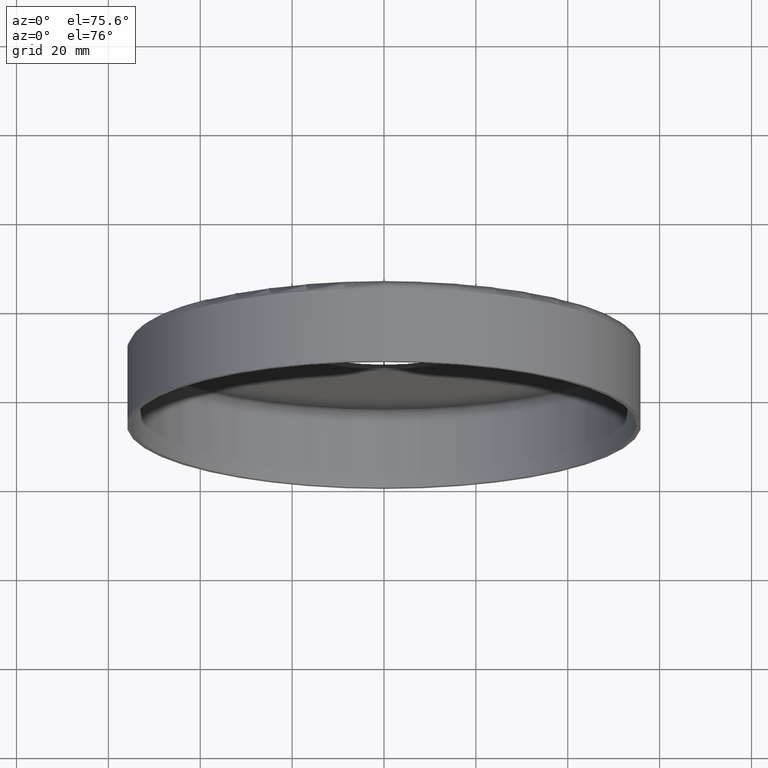
[diagram: clean part render]
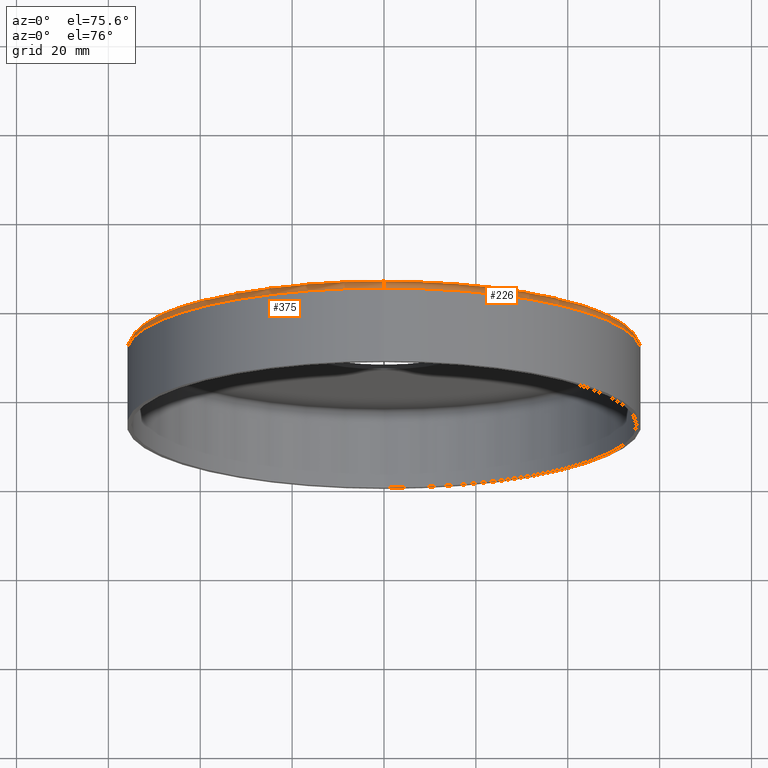
[diagram: same view with one multi-face feature highlighted, each face labeled with its STEP entity id]
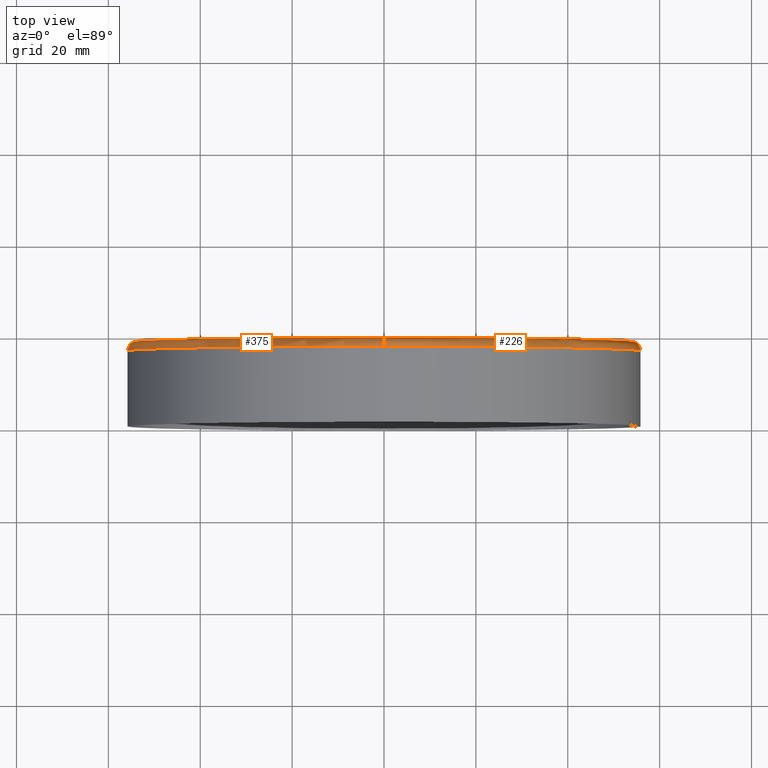
[diagram: same view with one multi-face feature highlighted, each face labeled with its STEP entity id]
A machine part, auxiliary view. The highlighted faces form ONE feature: a constant-radius fillet chain: 2 tangent blend faces with common blend radius 2 mm. The faces share edges in the B-rep.
A second angle (top view) of the same feature is appended — it is thin or edge-on in the first view.
Their STEP definitions:
[1] entity #226 (Torus):
#20 = VERTEX_POINT ( 'NONE', #274 ) ;
#25 = CIRCLE ( 'NONE', #267, 56.00000000000000700 ) ;
#27 = EDGE_CURVE ( 'NONE', #182, #277, #397, .T. ) ;
#48 = DIRECTION ( 'NONE',  ( 0.0000000000000000000, 1.000000000000000000, 0.0000000000000000000 ) ) ;
#50 = AXIS2_PLACEMENT_3D ( 'NONE', #127, #345, #154 ) ;
#60 = EDGE_CURVE ( 'NONE', #20, #229, #373, .T. ) ;
#73 = AXIS2_PLACEMENT_3D ( 'NONE', #392, #337, #275 ) ;
#80 = ORIENTED_EDGE ( 'NONE', *, *, #328, .F. ) ;
#82 = CARTESIAN_POINT ( 'NONE',  ( 6.613092715395708300E-015, 16.39999999999999900, -54.00000000000000700 ) ) ;
#88 = EDGE_LOOP ( 'NONE', ( #178, #327, #80, #204 ) ) ;
#91 = CARTESIAN_POINT ( 'NONE',  ( 0.0000000000000000000, 16.39999999999999900, -56.00000000000000700 ) ) ;
#127 = CARTESIAN_POINT ( 'NONE',  ( 0.0000000000000000000, 18.39999999999999900, 0.0000000000000000000 ) ) ;
#128 = CARTESIAN_POINT ( 'NONE',  ( 0.0000000000000000000, 16.39999999999999900, 0.0000000000000000000 ) ) ;
#136 = CARTESIAN_POINT ( 'NONE',  ( 0.0000000000000000000, 16.39999999999999900, 0.0000000000000000000 ) ) ;
#154 = DIRECTION ( 'NONE',  ( 0.0000000000000000000, 0.0000000000000000000, 1.000000000000000000 ) ) ;
#163 = AXIS2_PLACEMENT_3D ( 'NONE', #82, #209, #247 ) ;
#169 = EDGE_CURVE ( 'NONE', #182, #20, #25, .T. ) ;
#177 = FACE_OUTER_BOUND ( 'NONE', #88, .T. ) ;
#178 = ORIENTED_EDGE ( 'NONE', *, *, #169, .F. ) ;
#182 = VERTEX_POINT ( 'NONE', #91 ) ;
#190 = DIRECTION ( 'NONE',  ( -0.0000000000000000000, -1.000000000000000000, -0.0000000000000000000 ) ) ;
#200 = DIRECTION ( 'NONE',  ( 0.0000000000000000000, 0.0000000000000000000, 1.000000000000000000 ) ) ;
#204 = ORIENTED_EDGE ( 'NONE', *, *, #60, .F. ) ;
#209 = DIRECTION ( 'NONE',  ( 1.000000000000000000, -0.0000000000000000000, 1.224646799147353200E-016 ) ) ;
#226 = ADVANCED_FACE ( 'NONE', ( #177 ), #260, .T. ) ;
#229 = VERTEX_POINT ( 'NONE', #358 ) ;
#247 = DIRECTION ( 'NONE',  ( 1.224646799147353500E-016, 0.0000000000000000000, -1.000000000000000000 ) ) ;
#260 = TOROIDAL_SURFACE ( 'NONE', #280, 54.00000000000000700, 2.000000000000000000 ) ;
#267 = AXIS2_PLACEMENT_3D ( 'NONE', #128, #190, #317 ) ;
#274 = CARTESIAN_POINT ( 'NONE',  ( 6.858022075225179300E-015, 16.39999999999999900, 56.00000000000000700 ) ) ;
#275 = DIRECTION ( 'NONE',  ( 0.0000000000000000000, 0.0000000000000000000, 1.000000000000000000 ) ) ;
#277 = VERTEX_POINT ( 'NONE', #297 ) ;
#280 = AXIS2_PLACEMENT_3D ( 'NONE', #136, #48, #200 ) ;
#297 = CARTESIAN_POINT ( 'NONE',  ( 6.735557395310443400E-015, 18.39999999999999900, -54.00000000000000700 ) ) ;
#317 = DIRECTION ( 'NONE',  ( 0.0000000000000000000, 0.0000000000000000000, 1.000000000000000000 ) ) ;
#327 = ORIENTED_EDGE ( 'NONE', *, *, #27, .T. ) ;
#328 = EDGE_CURVE ( 'NONE', #229, #277, #363, .T. ) ;
#337 = DIRECTION ( 'NONE',  ( -1.000000000000000000, 0.0000000000000000000, 0.0000000000000000000 ) ) ;
#345 = DIRECTION ( 'NONE',  ( 0.0000000000000000000, 1.000000000000000000, 0.0000000000000000000 ) ) ;
#358 = CARTESIAN_POINT ( 'NONE',  ( 0.0000000000000000000, 18.39999999999999900, 54.00000000000000700 ) ) ;
#363 = CIRCLE ( 'NONE', #50, 54.00000000000000700 ) ;
#373 = CIRCLE ( 'NONE', #73, 2.000000000000001800 ) ;
#392 = CARTESIAN_POINT ( 'NONE',  ( 0.0000000000000000000, 16.39999999999999900, 54.00000000000000700 ) ) ;
#397 = CIRCLE ( 'NONE', #163, 2.000000000000001800 ) ;
[2] entity #375 (Torus):
#20 = VERTEX_POINT ( 'NONE', #274 ) ;
#27 = EDGE_CURVE ( 'NONE', #182, #277, #397, .T. ) ;
#44 = DIRECTION ( 'NONE',  ( 0.0000000000000000000, 1.000000000000000000, 0.0000000000000000000 ) ) ;
#60 = EDGE_CURVE ( 'NONE', #20, #229, #373, .T. ) ;
#65 = AXIS2_PLACEMENT_3D ( 'NONE', #245, #129, #92 ) ;
#73 = AXIS2_PLACEMENT_3D ( 'NONE', #392, #337, #275 ) ;
#82 = CARTESIAN_POINT ( 'NONE',  ( 6.613092715395708300E-015, 16.39999999999999900, -54.00000000000000700 ) ) ;
#91 = CARTESIAN_POINT ( 'NONE',  ( 0.0000000000000000000, 16.39999999999999900, -56.00000000000000700 ) ) ;
#92 = DIRECTION ( 'NONE',  ( 0.0000000000000000000, 0.0000000000000000000, 1.000000000000000000 ) ) ;
#102 = CARTESIAN_POINT ( 'NONE',  ( 0.0000000000000000000, 18.39999999999999900, 0.0000000000000000000 ) ) ;
#112 = EDGE_CURVE ( 'NONE', #20, #182, #212, .T. ) ;
#114 = FACE_OUTER_BOUND ( 'NONE', #331, .T. ) ;
#117 = ORIENTED_EDGE ( 'NONE', *, *, #112, .F. ) ;
#129 = DIRECTION ( 'NONE',  ( 0.0000000000000000000, 1.000000000000000000, 0.0000000000000000000 ) ) ;
#163 = AXIS2_PLACEMENT_3D ( 'NONE', #82, #209, #247 ) ;
#182 = VERTEX_POINT ( 'NONE', #91 ) ;
#185 = AXIS2_PLACEMENT_3D ( 'NONE', #254, #319, #250 ) ;
#196 = EDGE_CURVE ( 'NONE', #277, #229, #201, .T. ) ;
#201 = CIRCLE ( 'NONE', #395, 54.00000000000000700 ) ;
#209 = DIRECTION ( 'NONE',  ( 1.000000000000000000, -0.0000000000000000000, 1.224646799147353200E-016 ) ) ;
#212 = CIRCLE ( 'NONE', #185, 56.00000000000000700 ) ;
#229 = VERTEX_POINT ( 'NONE', #358 ) ;
#230 = ORIENTED_EDGE ( 'NONE', *, *, #196, .F. ) ;
#245 = CARTESIAN_POINT ( 'NONE',  ( 0.0000000000000000000, 16.39999999999999900, 0.0000000000000000000 ) ) ;
#247 = DIRECTION ( 'NONE',  ( 1.224646799147353500E-016, 0.0000000000000000000, -1.000000000000000000 ) ) ;
#250 = DIRECTION ( 'NONE',  ( 0.0000000000000000000, 0.0000000000000000000, 1.000000000000000000 ) ) ;
#254 = CARTESIAN_POINT ( 'NONE',  ( 0.0000000000000000000, 16.39999999999999900, 0.0000000000000000000 ) ) ;
#274 = CARTESIAN_POINT ( 'NONE',  ( 6.858022075225179300E-015, 16.39999999999999900, 56.00000000000000700 ) ) ;
#275 = DIRECTION ( 'NONE',  ( 0.0000000000000000000, 0.0000000000000000000, 1.000000000000000000 ) ) ;
#277 = VERTEX_POINT ( 'NONE', #297 ) ;
#297 = CARTESIAN_POINT ( 'NONE',  ( 6.735557395310443400E-015, 18.39999999999999900, -54.00000000000000700 ) ) ;
#319 = DIRECTION ( 'NONE',  ( -0.0000000000000000000, -1.000000000000000000, -0.0000000000000000000 ) ) ;
#321 = ORIENTED_EDGE ( 'NONE', *, *, #60, .T. ) ;
#331 = EDGE_LOOP ( 'NONE', ( #357, #117, #321, #230 ) ) ;
#337 = DIRECTION ( 'NONE',  ( -1.000000000000000000, 0.0000000000000000000, 0.0000000000000000000 ) ) ;
#357 = ORIENTED_EDGE ( 'NONE', *, *, #27, .F. ) ;
#358 = CARTESIAN_POINT ( 'NONE',  ( 0.0000000000000000000, 18.39999999999999900, 54.00000000000000700 ) ) ;
#373 = CIRCLE ( 'NONE', #73, 2.000000000000001800 ) ;
#375 = ADVANCED_FACE ( 'NONE', ( #114 ), #396, .T. ) ;
#383 = DIRECTION ( 'NONE',  ( 0.0000000000000000000, 0.0000000000000000000, 1.000000000000000000 ) ) ;
#392 = CARTESIAN_POINT ( 'NONE',  ( 0.0000000000000000000, 16.39999999999999900, 54.00000000000000700 ) ) ;
#395 = AXIS2_PLACEMENT_3D ( 'NONE', #102, #44, #383 ) ;
#396 = TOROIDAL_SURFACE ( 'NONE', #65, 54.00000000000000700, 2.000000000000000000 ) ;
#397 = CIRCLE ( 'NONE', #163, 2.000000000000001800 ) ;